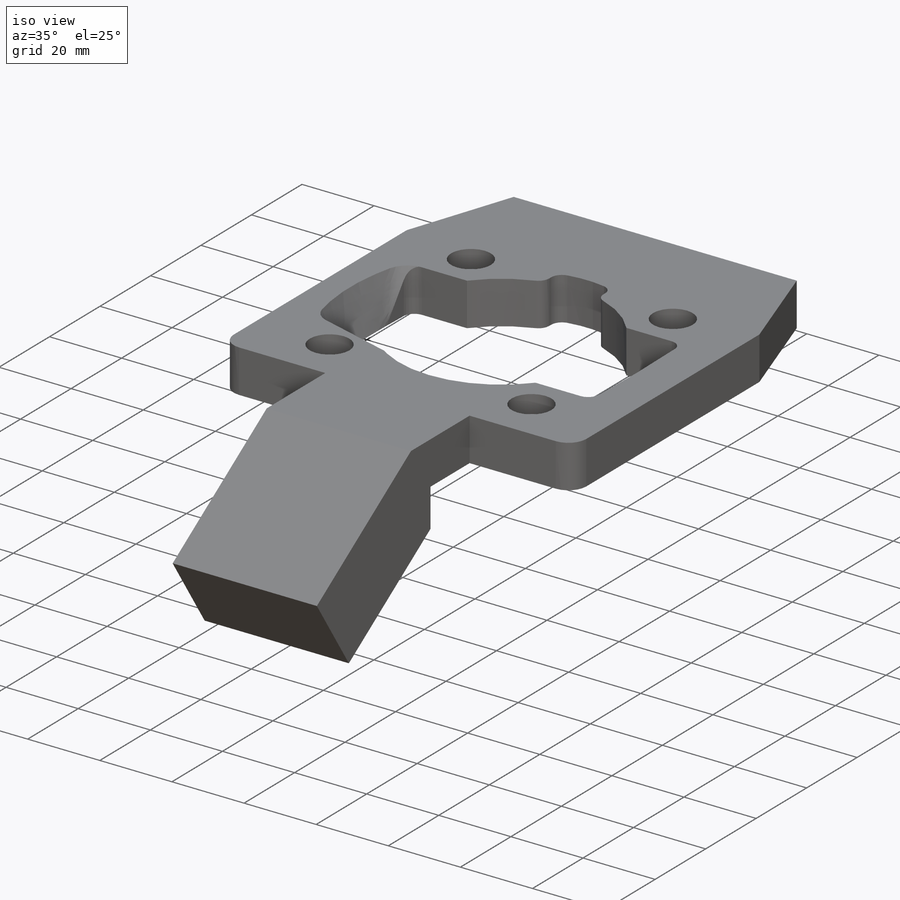
[diagram: iso view]
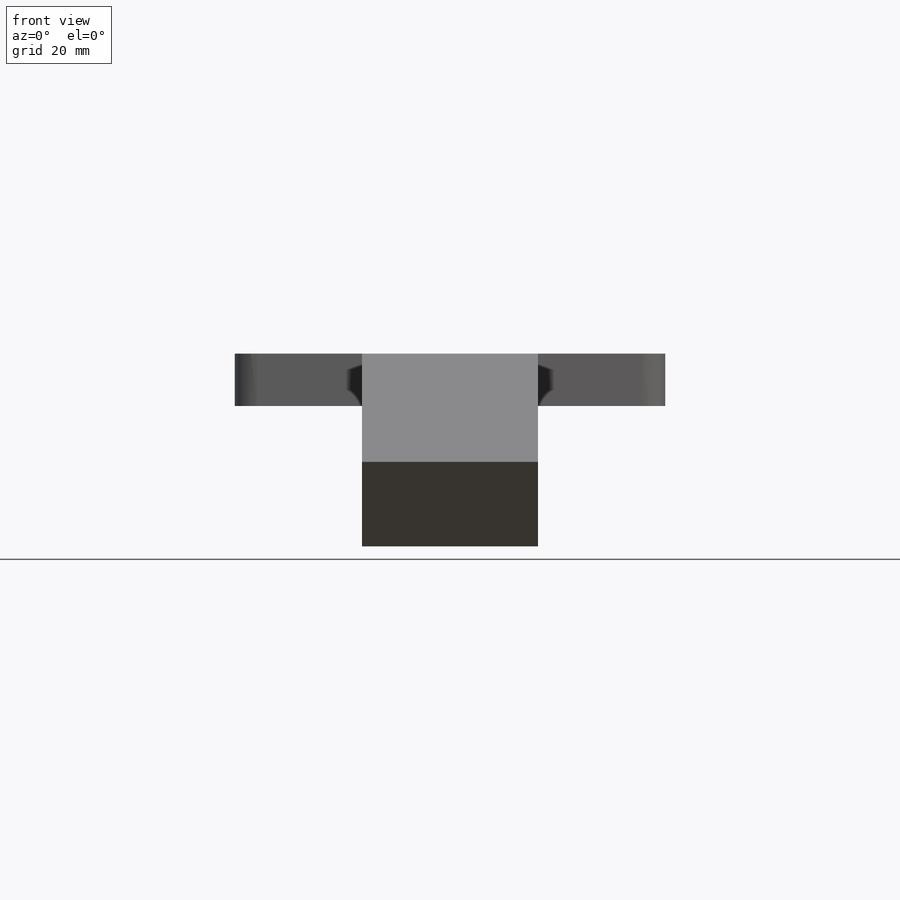
[diagram: front view]
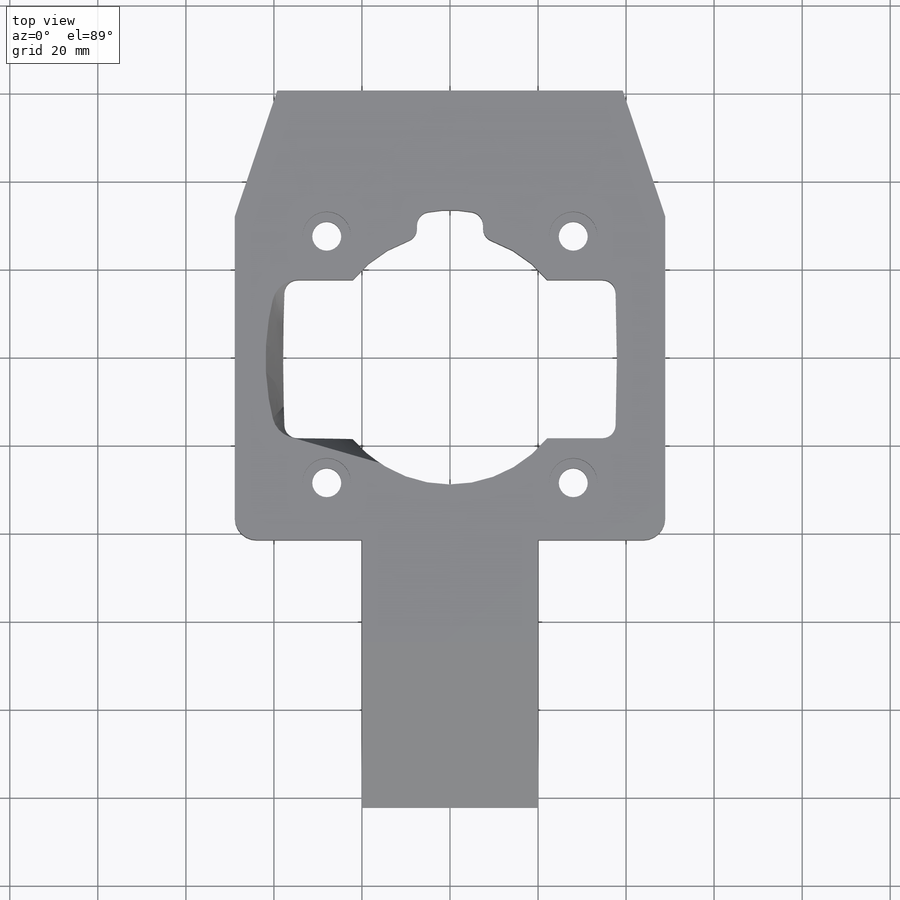
[diagram: top view]
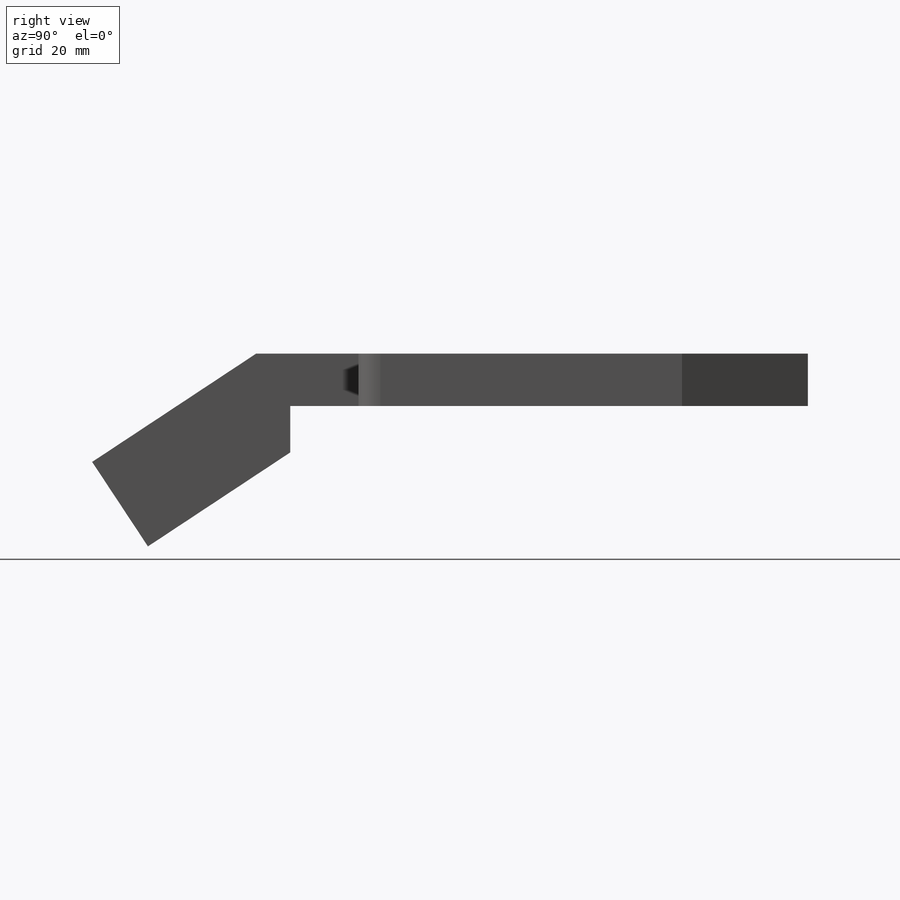
[diagram: right view]
SOLIDWORKS PART (.sldprt)
format: sldprt  version: not decoded by parser v0  size: 771,072 bytes
history: native  units: mm
features: sketch x11, cut_extrude x5, plane x3, hole x3, material x1, extrude x1, mirror x1, fillet x1 (+9 scaffold rows collapsed)
feature tree (35):
  scaffold x9  (default folders/planes/origin — collapsed)
  material  "Material <nicht festgelegt>"
  plane  "Ebene vorne"
  plane  "Ebene oben"
  plane  "Ebene rechts"
  sketch  "Skizze1"  dims[D1=11.9mm D2=23.0mm]
  extrude  "Aufsatz-Linear austragen1"  Depth=97.8mm
  sketch  "Skizze2"  dims[D1=39.25mm D2=28.6mm]
  cut_extrude  "Schnitt-Linear austragen1"  [1 undecoded]
  mirror  "Spiegeln1"
  sketch  "Skizze3"  dims[D1=57.0mm]
  cut_extrude  "Schnitt-Linear austragen2"  [1 undecoded]
  sketch  "Skizze4"  dims[c1.D4=~31.48641mm c1.D1=36.0mm c1.D2=75.0mm c1.D3=11.0mm c2.D4=11.0mm]
  cut_extrude  "Schnitt-Linear austragen3"  [1 undecoded]
  fillet  "Verrundung1"  Radius=3mm
  sketch  "Skizze5"  dims[D1=56.0mm D2=56.0mm]
  hole  "Stirnsenkung für M6 Zylinderschraube mit Innensechskant1"  Diameter=6.6mm Depth=43.800153mm
  sketch  "Skizze7"
  sketch  "Skizze6"  dims[hole-wizard template sketch: 41 standard entries collapsed; hole parameters kept: c12.Bohrerdurchmesser=6.6mm c12.Bohrungstiefe=~43.800153mm c12.Senkdurchmesser2=11.0mm c12.Senktiefe2=5.0mm]
  sketch  "Skizze8"  dims[D1=102.1mm D2=40.0mm]
  cut_extrude  "Schnitt-Linear austragen4"  [1 undecoded]
  hole  "Verrundung2"  Diameter=5mm
  sketch  "Skizze9"  dims[c1.D2=28.5mm c1.D1=15.0mm c2.D2=62.4mm]
  cut_extrude  "Schnitt-Linear austragen5"  [1 undecoded]
  hole  "Verrundung3"  Diameter=3mm
  sketch  "Skizze10"  dims[c1.D1=~151.345857mm c1.D2=6.0mm c1.D3=~62.774708mm c2.D1=7.0mm c2.D3=~26.762401mm c2.D2=27.0mm c3.D3=16.0mm]
  sketch  "Skizze11"  dims[D1=11.0mm D2=21.0mm]
decode coverage: 15 of 22 modeling features carry decoded parameters
note: ~ marks probable driven/reference dimensions
note: 5 parameter values undecoded
summary: no parameter record found for 5 features
note: suppression state not decoded; provenance and decode notes live in map.json
